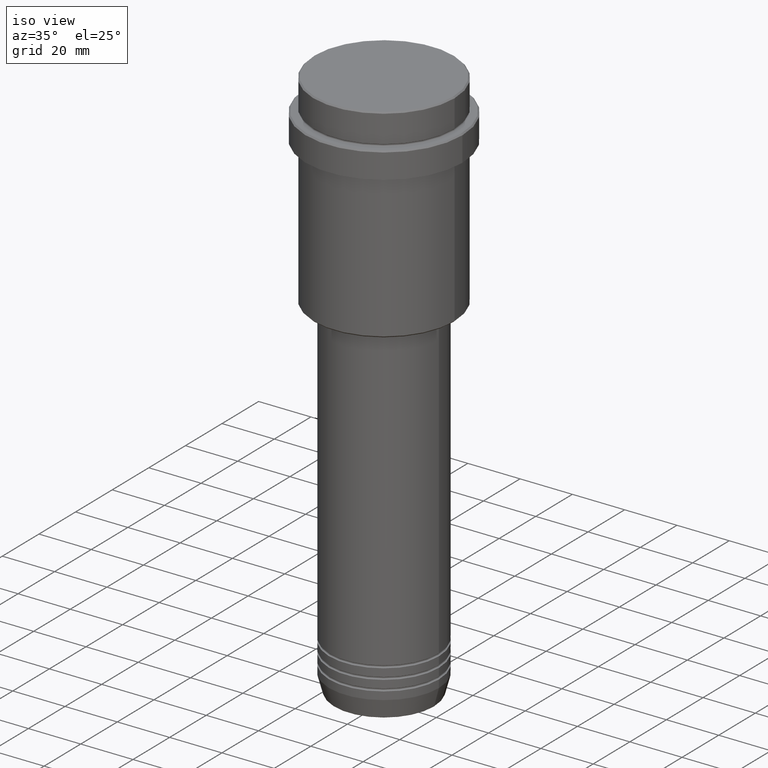
[diagram: clean part render]
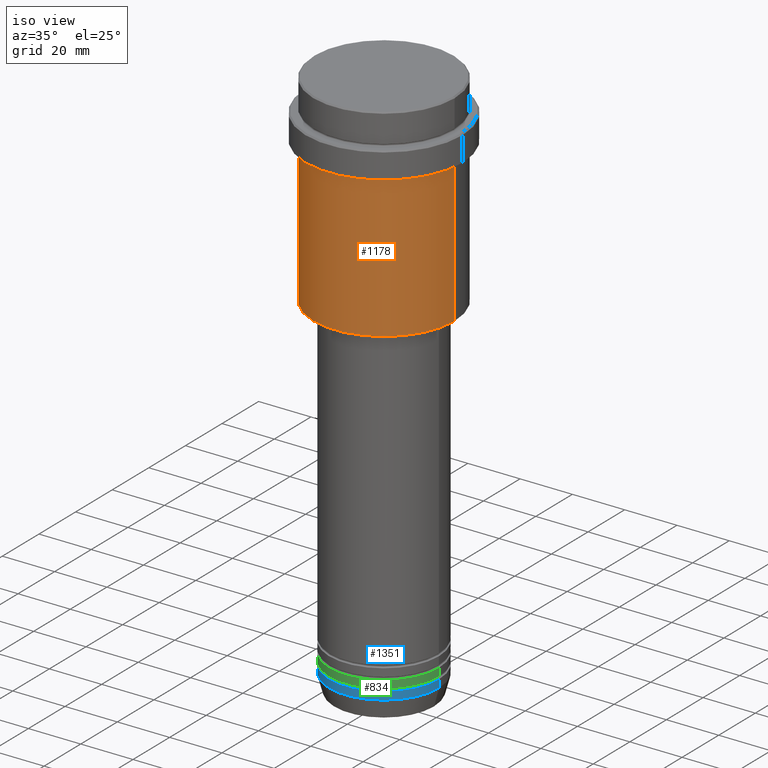
[diagram: same view with three faces highlighted in distinct colors, each labeled with its STEP entity id]
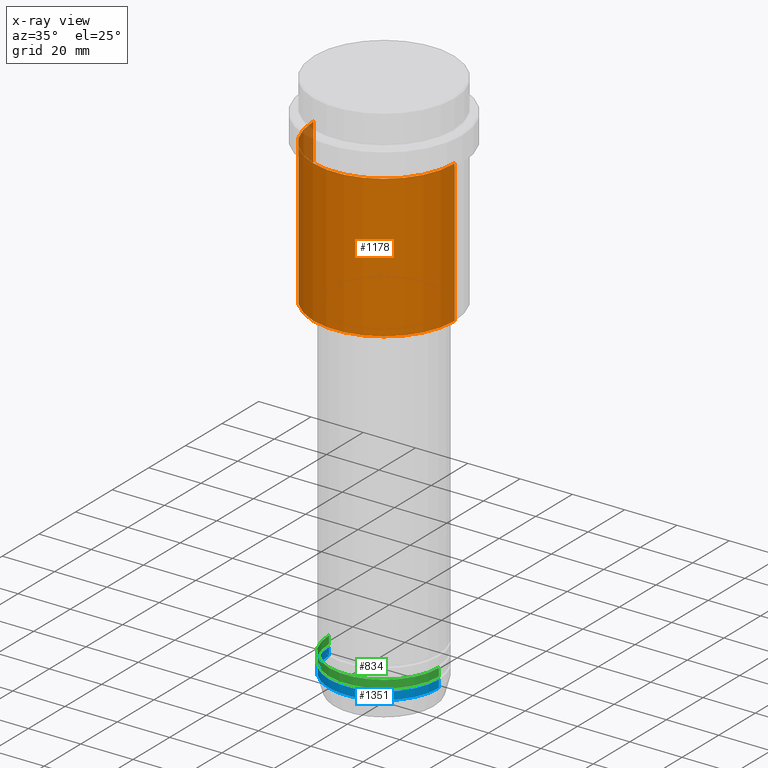
[diagram: x-ray of the same camera — body ghosted, the three highlighted faces saturated]
A machine part, iso view with three faces highlighted in distinct colors.
The next image is the same camera in x-ray (body ghosted, the three faces saturated) — at least one of them is partly hidden behind the body in this view.
Their STEP definitions:

[orange] entity #1178 — the highlighted cylindrical surface (partial cylindrical patch) has radius 27 mm, axis along (-0, -0, 1).
#30 = VECTOR ( 'NONE', #1139, 1000.000000000000000 ) ;
#54 = CARTESIAN_POINT ( 'NONE',  ( -26.99999999999999645, 3.306546357697853339E-15, 0.000000000000000000 ) ) ;
#82 = DIRECTION ( 'NONE',  ( -0.000000000000000000, -0.000000000000000000, 1.000000000000000000 ) ) ;
#97 = FACE_OUTER_BOUND ( 'NONE', #1021, .T. ) ;
#112 = CARTESIAN_POINT ( 'NONE',  ( 0.000000000000000000, 0.000000000000000000, 0.000000000000000000 ) ) ;
#156 = ORIENTED_EDGE ( 'NONE', *, *, #936, .T. ) ;
#158 = CARTESIAN_POINT ( 'NONE',  ( -26.99999999999999645, 3.306546357697853339E-15, -23.00000000000000000 ) ) ;
#170 = CIRCLE ( 'NONE', #197, 26.99999999999999645 ) ;
#197 = AXIS2_PLACEMENT_3D ( 'NONE', #1237, #907, #1342 ) ;
#233 = DIRECTION ( 'NONE',  ( -1.000000000000000000, 0.000000000000000000, 0.000000000000000000 ) ) ;
#271 = AXIS2_PLACEMENT_3D ( 'NONE', #1103, #1320, #233 ) ;
#309 = VERTEX_POINT ( 'NONE', #889 ) ;
#315 = AXIS2_PLACEMENT_3D ( 'NONE', #112, #82, #1077 ) ;
#347 = EDGE_CURVE ( 'NONE', #309, #1154, #366, .T. ) ;
#366 = LINE ( 'NONE', #54, #1076 ) ;
#419 = EDGE_CURVE ( 'NONE', #1154, #986, #170, .T. ) ;
#475 = LINE ( 'NONE', #906, #30 ) ;
#550 = CARTESIAN_POINT ( 'NONE',  ( 26.99999999999999645, 0.000000000000000000, -23.00000000000000000 ) ) ;
#601 = DIRECTION ( 'NONE',  ( -0.000000000000000000, -0.000000000000000000, 1.000000000000000000 ) ) ;
#702 = CIRCLE ( 'NONE', #271, 26.99999999999999645 ) ;
#741 = EDGE_CURVE ( 'NONE', #1078, #986, #475, .T. ) ;
#836 = ORIENTED_EDGE ( 'NONE', *, *, #741, .T. ) ;
#889 = CARTESIAN_POINT ( 'NONE',  ( -26.99999999999999645, 3.306546357697853339E-15, -77.50000000000000000 ) ) ;
#894 = CARTESIAN_POINT ( 'NONE',  ( 26.99999999999999645, 0.000000000000000000, -77.50000000000000000 ) ) ;
#906 = CARTESIAN_POINT ( 'NONE',  ( 26.99999999999999645, 0.000000000000000000, 0.000000000000000000 ) ) ;
#907 = DIRECTION ( 'NONE',  ( -0.000000000000000000, -0.000000000000000000, 1.000000000000000000 ) ) ;
#936 = EDGE_CURVE ( 'NONE', #309, #1078, #702, .T. ) ;
#952 = ORIENTED_EDGE ( 'NONE', *, *, #419, .F. ) ;
#986 = VERTEX_POINT ( 'NONE', #550 ) ;
#1021 = EDGE_LOOP ( 'NONE', ( #1349, #156, #836, #952 ) ) ;
#1076 = VECTOR ( 'NONE', #601, 1000.000000000000000 ) ;
#1077 = DIRECTION ( 'NONE',  ( 1.000000000000000000, 0.000000000000000000, 0.000000000000000000 ) ) ;
#1078 = VERTEX_POINT ( 'NONE', #894 ) ;
#1103 = CARTESIAN_POINT ( 'NONE',  ( 0.000000000000000000, 0.000000000000000000, -77.50000000000000000 ) ) ;
#1139 = DIRECTION ( 'NONE',  ( -0.000000000000000000, -0.000000000000000000, 1.000000000000000000 ) ) ;
#1154 = VERTEX_POINT ( 'NONE', #158 ) ;
#1178 = ADVANCED_FACE ( 'NONE', ( #97 ), #1186, .T. ) ;
#1186 = CYLINDRICAL_SURFACE ( 'NONE', #315, 26.99999999999999645 ) ;
#1237 = CARTESIAN_POINT ( 'NONE',  ( 0.000000000000000000, 0.000000000000000000, -23.00000000000000000 ) ) ;
#1320 = DIRECTION ( 'NONE',  ( -0.000000000000000000, -0.000000000000000000, 1.000000000000000000 ) ) ;
#1342 = DIRECTION ( 'NONE',  ( 1.000000000000000000, 0.000000000000000000, 0.000000000000000000 ) ) ;
#1349 = ORIENTED_EDGE ( 'NONE', *, *, #347, .F. ) ;

[blue] entity #1351 — the highlighted cylindrical surface (partial cylindrical patch) has radius 21 mm, axis along (-0, -0, 1).
#23 = VECTOR ( 'NONE', #1004, 1000.000000000000000 ) ;
#230 = VERTEX_POINT ( 'NONE', #1305 ) ;
#236 = DIRECTION ( 'NONE',  ( 1.000000000000000000, 0.000000000000000000, 0.000000000000000000 ) ) ;
#263 = VERTEX_POINT ( 'NONE', #1205 ) ;
#289 = CARTESIAN_POINT ( 'NONE',  ( 21.00000000000000000, 0.000000000000000000, -206.0000000000000284 ) ) ;
#337 = ORIENTED_EDGE ( 'NONE', *, *, #619, .F. ) ;
#369 = EDGE_CURVE ( 'NONE', #812, #263, #1230, .T. ) ;
#372 = CARTESIAN_POINT ( 'NONE',  ( 0.000000000000000000, 0.000000000000000000, -203.0000000000000000 ) ) ;
#378 = DIRECTION ( 'NONE',  ( -0.000000000000000000, -0.000000000000000000, 1.000000000000000000 ) ) ;
#427 = EDGE_CURVE ( 'NONE', #1137, #263, #943, .T. ) ;
#462 = DIRECTION ( 'NONE',  ( -0.000000000000000000, -0.000000000000000000, 1.000000000000000000 ) ) ;
#477 = CARTESIAN_POINT ( 'NONE',  ( 0.000000000000000000, 0.000000000000000000, 0.000000000000000000 ) ) ;
#508 = DIRECTION ( 'NONE',  ( 1.000000000000000000, 0.000000000000000000, 0.000000000000000000 ) ) ;
#544 = AXIS2_PLACEMENT_3D ( 'NONE', #372, #378, #920 ) ;
#619 = EDGE_CURVE ( 'NONE', #230, #1137, #1359, .T. ) ;
#622 = ORIENTED_EDGE ( 'NONE', *, *, #427, .F. ) ;
#687 = CARTESIAN_POINT ( 'NONE',  ( 21.00000000000000000, 0.000000000000000000, 0.000000000000000000 ) ) ;
#701 = VECTOR ( 'NONE', #1017, 1000.000000000000000 ) ;
#749 = AXIS2_PLACEMENT_3D ( 'NONE', #477, #462, #236 ) ;
#800 = ORIENTED_EDGE ( 'NONE', *, *, #369, .T. ) ;
#812 = VERTEX_POINT ( 'NONE', #289 ) ;
#861 = EDGE_CURVE ( 'NONE', #230, #812, #972, .T. ) ;
#900 = AXIS2_PLACEMENT_3D ( 'NONE', #963, #1388, #508 ) ;
#920 = DIRECTION ( 'NONE',  ( 1.000000000000000000, 0.000000000000000000, 0.000000000000000000 ) ) ;
#943 = CIRCLE ( 'NONE', #544, 21.00000000000000000 ) ;
#955 = EDGE_LOOP ( 'NONE', ( #337, #1051, #800, #622 ) ) ;
#963 = CARTESIAN_POINT ( 'NONE',  ( 0.000000000000000000, 0.000000000000000000, -206.0000000000000284 ) ) ;
#972 = CIRCLE ( 'NONE', #900, 21.00000000000000000 ) ;
#1004 = DIRECTION ( 'NONE',  ( -0.000000000000000000, -0.000000000000000000, 1.000000000000000000 ) ) ;
#1017 = DIRECTION ( 'NONE',  ( -0.000000000000000000, -0.000000000000000000, 1.000000000000000000 ) ) ;
#1051 = ORIENTED_EDGE ( 'NONE', *, *, #861, .T. ) ;
#1098 = FACE_OUTER_BOUND ( 'NONE', #955, .T. ) ;
#1121 = CYLINDRICAL_SURFACE ( 'NONE', #749, 21.00000000000000000 ) ;
#1137 = VERTEX_POINT ( 'NONE', #1233 ) ;
#1205 = CARTESIAN_POINT ( 'NONE',  ( 21.00000000000000000, 0.000000000000000000, -203.0000000000000000 ) ) ;
#1230 = LINE ( 'NONE', #687, #23 ) ;
#1233 = CARTESIAN_POINT ( 'NONE',  ( -21.00000000000000000, 2.571758278209441661E-15, -203.0000000000000000 ) ) ;
#1305 = CARTESIAN_POINT ( 'NONE',  ( -21.00000000000000000, 2.571758278209441661E-15, -206.0000000000000284 ) ) ;
#1341 = CARTESIAN_POINT ( 'NONE',  ( -21.00000000000000000, 2.571758278209441661E-15, 0.000000000000000000 ) ) ;
#1351 = ADVANCED_FACE ( 'NONE', ( #1098 ), #1121, .T. ) ;
#1359 = LINE ( 'NONE', #1341, #701 ) ;
#1388 = DIRECTION ( 'NONE',  ( -0.000000000000000000, -0.000000000000000000, 1.000000000000000000 ) ) ;

[green] entity #834 — the highlighted cylindrical surface (partial cylindrical patch) has radius 21 mm, axis along (-0, -0, 1).
#33 = AXIS2_PLACEMENT_3D ( 'NONE', #122, #1014, #116 ) ;
#56 = AXIS2_PLACEMENT_3D ( 'NONE', #190, #643, #1173 ) ;
#116 = DIRECTION ( 'NONE',  ( 1.000000000000000000, 0.000000000000000000, 0.000000000000000000 ) ) ;
#122 = CARTESIAN_POINT ( 'NONE',  ( 0.000000000000000000, 0.000000000000000000, -198.9999999999998863 ) ) ;
#140 = ORIENTED_EDGE ( 'NONE', *, *, #1132, .T. ) ;
#186 = EDGE_CURVE ( 'NONE', #1393, #641, #392, .T. ) ;
#187 = LINE ( 'NONE', #1346, #1336 ) ;
#190 = CARTESIAN_POINT ( 'NONE',  ( 0.000000000000000000, 0.000000000000000000, 0.000000000000000000 ) ) ;
#303 = ORIENTED_EDGE ( 'NONE', *, *, #186, .T. ) ;
#321 = FACE_OUTER_BOUND ( 'NONE', #857, .T. ) ;
#371 = CARTESIAN_POINT ( 'NONE',  ( 21.00000000000000000, 0.000000000000000000, -201.9999999999999147 ) ) ;
#392 = CIRCLE ( 'NONE', #621, 21.00000000000000000 ) ;
#552 = CARTESIAN_POINT ( 'NONE',  ( -21.00000000000000000, 2.571758278209441661E-15, -198.9999999999998863 ) ) ;
#557 = DIRECTION ( 'NONE',  ( 1.000000000000000000, 0.000000000000000000, 0.000000000000000000 ) ) ;
#621 = AXIS2_PLACEMENT_3D ( 'NONE', #1086, #1093, #557 ) ;
#641 = VERTEX_POINT ( 'NONE', #371 ) ;
#643 = DIRECTION ( 'NONE',  ( -0.000000000000000000, -0.000000000000000000, 1.000000000000000000 ) ) ;
#647 = CARTESIAN_POINT ( 'NONE',  ( 21.00000000000000000, 0.000000000000000000, -198.9999999999998863 ) ) ;
#745 = CYLINDRICAL_SURFACE ( 'NONE', #56, 21.00000000000000000 ) ;
#806 = DIRECTION ( 'NONE',  ( -0.000000000000000000, -0.000000000000000000, 1.000000000000000000 ) ) ;
#834 = ADVANCED_FACE ( 'NONE', ( #321 ), #745, .T. ) ;
#841 = DIRECTION ( 'NONE',  ( -0.000000000000000000, -0.000000000000000000, 1.000000000000000000 ) ) ;
#854 = VECTOR ( 'NONE', #841, 1000.000000000000000 ) ;
#857 = EDGE_LOOP ( 'NONE', ( #903, #303, #140, #1015 ) ) ;
#868 = EDGE_CURVE ( 'NONE', #1393, #1247, #940, .T. ) ;
#903 = ORIENTED_EDGE ( 'NONE', *, *, #868, .F. ) ;
#909 = CARTESIAN_POINT ( 'NONE',  ( -21.00000000000000000, 2.571758278209441661E-15, -201.9999999999999147 ) ) ;
#940 = LINE ( 'NONE', #950, #854 ) ;
#949 = CIRCLE ( 'NONE', #33, 21.00000000000000000 ) ;
#950 = CARTESIAN_POINT ( 'NONE',  ( -21.00000000000000000, 2.571758278209441661E-15, 0.000000000000000000 ) ) ;
#1014 = DIRECTION ( 'NONE',  ( -0.000000000000000000, -0.000000000000000000, 1.000000000000000000 ) ) ;
#1015 = ORIENTED_EDGE ( 'NONE', *, *, #1363, .F. ) ;
#1086 = CARTESIAN_POINT ( 'NONE',  ( 0.000000000000000000, 0.000000000000000000, -201.9999999999999147 ) ) ;
#1093 = DIRECTION ( 'NONE',  ( -0.000000000000000000, -0.000000000000000000, 1.000000000000000000 ) ) ;
#1132 = EDGE_CURVE ( 'NONE', #641, #1307, #187, .T. ) ;
#1173 = DIRECTION ( 'NONE',  ( 1.000000000000000000, 0.000000000000000000, 0.000000000000000000 ) ) ;
#1247 = VERTEX_POINT ( 'NONE', #552 ) ;
#1307 = VERTEX_POINT ( 'NONE', #647 ) ;
#1336 = VECTOR ( 'NONE', #806, 1000.000000000000000 ) ;
#1346 = CARTESIAN_POINT ( 'NONE',  ( 21.00000000000000000, 0.000000000000000000, 0.000000000000000000 ) ) ;
#1363 = EDGE_CURVE ( 'NONE', #1247, #1307, #949, .T. ) ;
#1393 = VERTEX_POINT ( 'NONE', #909 ) ;